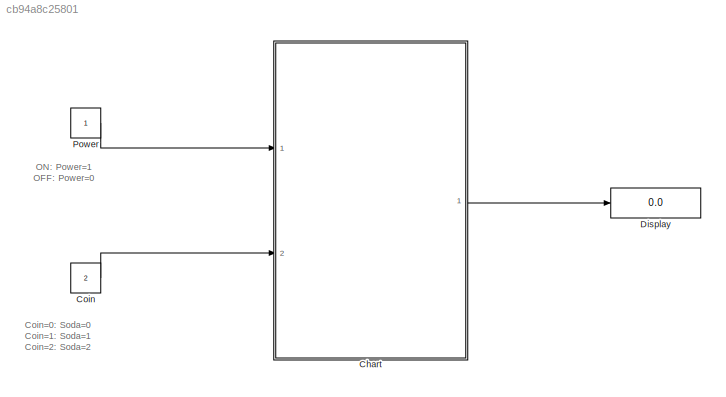
MODEL slx_cb94a8c25801
KIND model
CONFIG AbsTol = auto
CONFIG EnableMultiTasking = off
CONFIG FixedStep = auto
CONFIG MaxStep = auto
CONFIG MinStep = auto
CONFIG RelTol = 1e-3
CONFIG SampleTimeConstraint = Unconstrained
CONFIG SolverName = VariableStepAuto
CONFIG StartTime = 0.0
CONFIG StopTime = 10.0
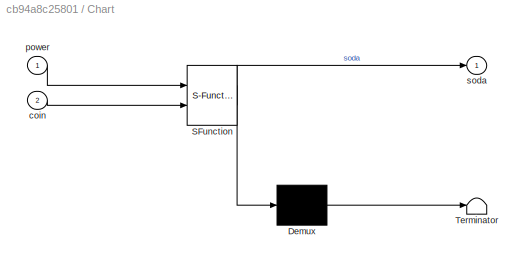
BLOCK [SubSystem] Chart
  ErrorFcn = Stateflow.Translate.translate
  PermitHierarchicalResolution = ExplicitOnly
  Ports = [2, 1]
  RequestExecContextInheritance = off
  SFBlockType = Chart
  TreatAsAtomicUnit = on
BLOCK [Demux] Chart/ Demux 
  Outputs = 1
  Ports = [1, 1]
BLOCK [S-Function] Chart/ SFunction 
  EnableBusSupport = on
  FunctionName = sf_sfun
  PortCounts = [2 2]
  Ports = [2, 2]
  SFcnIsStateOwnerBlock = off
  SFunctionDeploymentMode = off
  Tag = Stateflow S-Function 3
BLOCK [Terminator] Chart/ Terminator 
BLOCK [Inport] Chart/coin
  Port = 2
BLOCK [Inport] Chart/power
BLOCK [Outport] Chart/soda
BLOCK [Constant] Coin
  Value = 2
BLOCK [Display] Display
  Decimation = 1
  Ports = [1]
BLOCK [Constant] Power
ANNOTATION (root): Coin=0: Soda=0 Coin=1: Soda=1 Coin=2: Soda=2
ANNOTATION (root): ON: Power=1 OFF: Power=0
LINE Chart:1 -> Display:1
LINE Coin:1 -> Chart:2
LINE Power:1 -> Chart:1
CHART Chart states=5 transitions=10
  STATE_LABEL 'On'
  STATE_LABEL 'got_0\n'
  STATE_LABEL 'got_coin1'
  STATE_LABEL 'got_coin2\n'
  STATE_LABEL '[coin==1]{soda=0}'
  STATE_LABEL '[coin==2]{soda=1}'
  STATE_LABEL '[coin==2]{soda=0}'
  STATE_LABEL '[coin==1]{soda=1}'
  STATE_LABEL '[coin==1]{soda=0}'
  STATE_LABEL '[coin==2]{soda=1}'
  STATE_LABEL 'got_0\n'
  STATE_LABEL 'got_coin1'
  STATE_LABEL 'got_coin2\n'
  STATE_LABEL 'Off'
CHART  states=0 transitions=0
